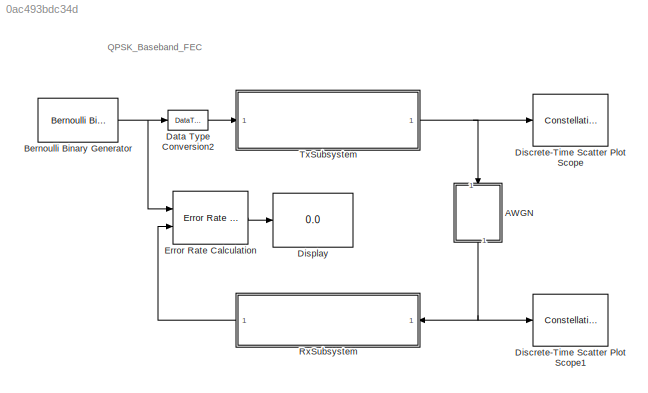
MODEL slx_0ac493bdc34d
KIND model
CONFIG AbsTol = auto
CONFIG FixedStep = auto
CONFIG MaxStep = auto
CONFIG MinStep = auto
CONFIG PreLoadFcn = EbNo=100 \nmaxNumErrs=1\nmaxNumBits=1
CONFIG RelTol = 1e-3
CONFIG SampleTimeConstraint = Unconstrained
CONFIG Solver = FixedStepDiscrete
CONFIG SolverMode = SingleTasking
CONFIG SolverName = FixedStepDiscrete
CONFIG StartTime = 0.0
CONFIG StopTime = 0.1
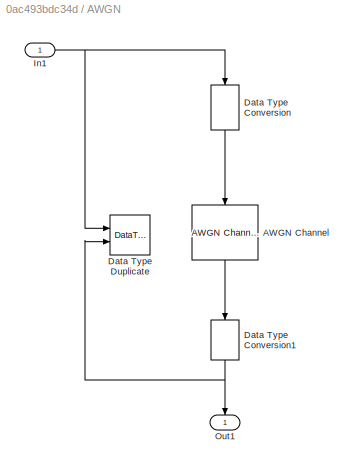
BLOCK [SubSystem] AWGN
  Ports = [1, 1]
  RequestExecContextInheritance = off
  Variant = off
BLOCK [Reference] AWGN/AWGN Channel  REF=commchan3/AWGN
Channel
  Ports = [1, 1]
  SourceBlock = commchan3/AWGN\nChannel
  SourceType = AWGN Channel
  UserDataPersistent = on
BLOCK [DataTypeConversion] AWGN/Data Type Conversion
  OutDataTypeStr = double
  RndMeth = Floor
  SaturateOnIntegerOverflow = off
BLOCK [DataTypeConversion] AWGN/Data Type Conversion1
  RndMeth = Floor
  SaturateOnIntegerOverflow = off
BLOCK [DataTypeDuplicate] AWGN/Data Type Duplicate
  Ports = [2]
BLOCK [Inport] AWGN/In1
  IconDisplay = Port number
BLOCK [Outport] AWGN/Out1
  IconDisplay = Port number
BLOCK [Reference] Bernoulli Binary Generator  REF=commrandsrc2/Bernoulli Binary
Generator
  Ports = [0, 1]
  SourceBlock = commrandsrc2/Bernoulli Binary\nGenerator
  SourceType = Bernoulli Binary Generator
BLOCK [DataTypeConversion] Data Type Conversion2
  OutDataTypeStr = fixdt(0,1,0)
  RndMeth = Floor
  SaturateOnIntegerOverflow = off
BLOCK [ConstellationDiagram] Discrete-Time Scatter Plot Scope
  Ports = [1]
  ScopeSpecificationString = comm.scopes.ConstellationDiagramBlockCfg('CurrentConfiguration', extmgr.ConfigurationSet(extmgr.Configuration('Tools','Measurements',true),extmgr.Configuration('Core','General UI',true,'ShowNewAction',false,'ShowLoadConfigSet',false,'ShowSaveConfigSet',false,'FigureColor',[0.156862745098039 0.156862745098039 0.156862745098039]),extmgr.Configuration('Tools','Plot Navigation',true,'XDataDisplay',80,...<+660ch>
  Tag = ScatterPlot
BLOCK [ConstellationDiagram] Discrete-Time Scatter Plot Scope1
  Ports = [1]
  ScopeSpecificationString = comm.scopes.ConstellationDiagramBlockCfg('CurrentConfiguration', extmgr.ConfigurationSet(extmgr.Configuration('Tools','Measurements',true),extmgr.Configuration('Core','General UI',true,'ShowNewAction',false,'ShowLoadConfigSet',false,'ShowSaveConfigSet',false,'FigureColor',[0.156862745098039 0.156862745098039 0.156862745098039]),extmgr.Configuration('Tools','Plot Navigation',true,'XDataDisplay',80,...<+660ch>
  Tag = ScatterPlot
BLOCK [Display] Display
  Decimation = 1
  Ports = [1]
BLOCK [Reference] Error Rate Calculation  REF=commsink2/Error Rate
Calculation
  Ports = [2, 1]
  SourceBlock = commsink2/Error Rate\nCalculation
  SourceType = Error Rate Calculation
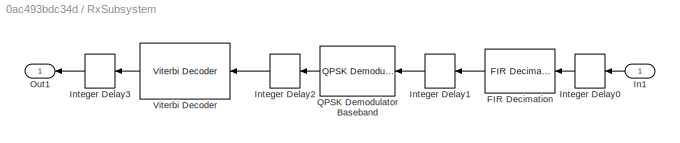
BLOCK [SubSystem] RxSubsystem
  Ports = [1, 1]
  RequestExecContextInheritance = off
  Variant = off
BLOCK [Reference] RxSubsystem/FIR Decimation  REF=dspobslib/FIR
Decimation
  Ports = [1, 1]
  SourceBlock = dspobslib/FIR\nDecimation
  SourceType = FIR Decimation
  UserDataPersistent = on
BLOCK [Inport] RxSubsystem/In1
  IconDisplay = Port number
BLOCK [Delay] RxSubsystem/Integer Delay0
  DelayLength = 1
  InputPortMap = u0
  Ports = [1, 1]
  UserDataPersistent = on
BLOCK [Delay] RxSubsystem/Integer Delay1
  DelayLength = 1
  InputPortMap = u0
  Ports = [1, 1]
  UserDataPersistent = on
BLOCK [Delay] RxSubsystem/Integer Delay2
  DelayLength = 1
  InputPortMap = u0
  Ports = [1, 1]
  UserDataPersistent = on
BLOCK [Delay] RxSubsystem/Integer Delay3
  DelayLength = 1
  InputPortMap = u0
  Ports = [1, 1]
  UserDataPersistent = on
BLOCK [Outport] RxSubsystem/Out1
  IconDisplay = Port number
BLOCK [Reference] RxSubsystem/QPSK Demodulator Baseband  REF=commdigbbndpm3/QPSK
Demodulator
Baseband
  Ports = [1, 1]
  SourceBlock = commdigbbndpm3/QPSK\nDemodulator\nBaseband
  SourceType = QPSK Demodulator Baseband
BLOCK [Reference] RxSubsystem/Viterbi Decoder  REF=commcnvcod2/Viterbi Decoder
  Ports = [1, 1]
  SourceBlock = commcnvcod2/Viterbi Decoder
  SourceType = Viterbi Decoder
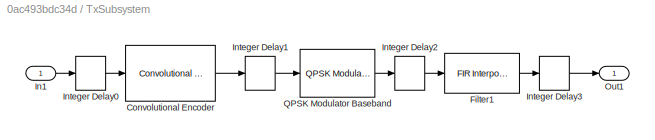
BLOCK [SubSystem] TxSubsystem
  Ports = [1, 1]
  RequestExecContextInheritance = off
  Variant = off
BLOCK [Reference] TxSubsystem/Convolutional Encoder  REF=commcnvcod2/Convolutional
Encoder
  Ports = [1, 1]
  SourceBlock = commcnvcod2/Convolutional\nEncoder
  SourceType = Convolutional Encoder
BLOCK [Reference] TxSubsystem/Filter1  REF=dspobslib/FIR
Interpolation
  Ports = [1, 1]
  SourceBlock = dspobslib/FIR\nInterpolation
  SourceType = FIR Interpolation
  Tag = BlockMethodSubSystem
  UserDataPersistent = on
BLOCK [Inport] TxSubsystem/In1
  IconDisplay = Port number
BLOCK [Delay] TxSubsystem/Integer Delay0
  DelayLength = 1
  InputPortMap = u0
  Ports = [1, 1]
  UserDataPersistent = on
BLOCK [Delay] TxSubsystem/Integer Delay1
  DelayLength = 1
  InputPortMap = u0
  Ports = [1, 1]
  UserDataPersistent = on
BLOCK [Delay] TxSubsystem/Integer Delay2
  DelayLength = 1
  InputPortMap = u0
  Ports = [1, 1]
  UserDataPersistent = on
BLOCK [Delay] TxSubsystem/Integer Delay3
  DelayLength = 1
  InputPortMap = u0
  Ports = [1, 1]
  UserDataPersistent = on
BLOCK [Outport] TxSubsystem/Out1
  IconDisplay = Port number
BLOCK [Reference] TxSubsystem/QPSK Modulator Baseband  REF=commdigbbndpm3/QPSK
Modulator
Baseband
  Ports = [1, 1]
  SourceBlock = commdigbbndpm3/QPSK\nModulator\nBaseband
  SourceType = QPSK Modulator Baseband
ANNOTATION (root): QPSK_Baseband_FEC
LINE AWGN/AWGN Channel:1 -> AWGN/Data Type Conversion1:1
NET AWGN/Data Type Conversion1:1 -> AWGN/Data Type Duplicate:2, AWGN/Out1:1
LINE AWGN/Data Type Conversion:1 -> AWGN/AWGN Channel:1
NET AWGN/In1:1 -> AWGN/Data Type Conversion:1, AWGN/Data Type Duplicate:1
NET AWGN:1 -> Discrete-Time Scatter Plot Scope1:1, RxSubsystem:1
NET Bernoulli Binary Generator:1 -> Data Type Conversion2:1, Error Rate Calculation:1
LINE Data Type Conversion2:1 -> TxSubsystem:1
LINE Error Rate Calculation:1 -> Display:1
LINE RxSubsystem/FIR Decimation:1 -> RxSubsystem/Integer Delay1:1
LINE RxSubsystem/In1:1 -> RxSubsystem/Integer Delay0:1
LINE RxSubsystem/Integer Delay0:1 -> RxSubsystem/FIR Decimation:1
LINE RxSubsystem/Integer Delay1:1 -> RxSubsystem/QPSK Demodulator Baseband:1
LINE RxSubsystem/Integer Delay2:1 -> RxSubsystem/Viterbi Decoder:1
LINE RxSubsystem/Integer Delay3:1 -> RxSubsystem/Out1:1
LINE RxSubsystem/QPSK Demodulator Baseband:1 -> RxSubsystem/Integer Delay2:1
LINE RxSubsystem/Viterbi Decoder:1 -> RxSubsystem/Integer Delay3:1
LINE RxSubsystem:1 -> Error Rate Calculation:2
LINE TxSubsystem/Convolutional Encoder:1 -> TxSubsystem/Integer Delay1:1
LINE TxSubsystem/Filter1:1 -> TxSubsystem/Integer Delay3:1
LINE TxSubsystem/In1:1 -> TxSubsystem/Integer Delay0:1
LINE TxSubsystem/Integer Delay0:1 -> TxSubsystem/Convolutional Encoder:1
LINE TxSubsystem/Integer Delay1:1 -> TxSubsystem/QPSK Modulator Baseband:1
LINE TxSubsystem/Integer Delay2:1 -> TxSubsystem/Filter1:1
LINE TxSubsystem/Integer Delay3:1 -> TxSubsystem/Out1:1
LINE TxSubsystem/QPSK Modulator Baseband:1 -> TxSubsystem/Integer Delay2:1
NET TxSubsystem:1 -> AWGN:1, Discrete-Time Scatter Plot Scope:1
note: NET lines group one-source signal fan-out (src -> all destinations, sorted); 1:1 wires keep LINE
